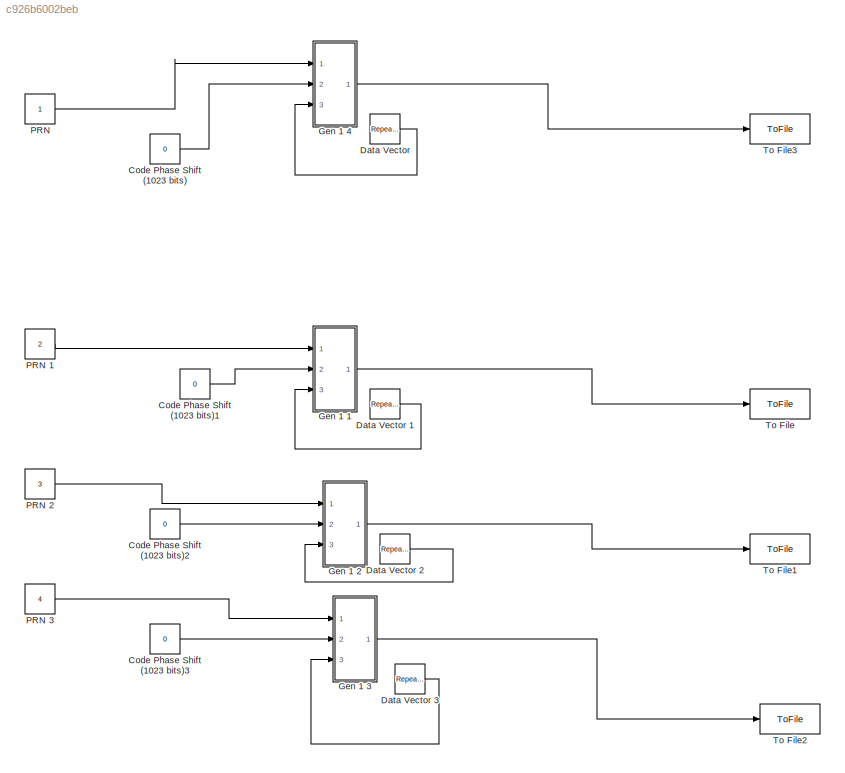
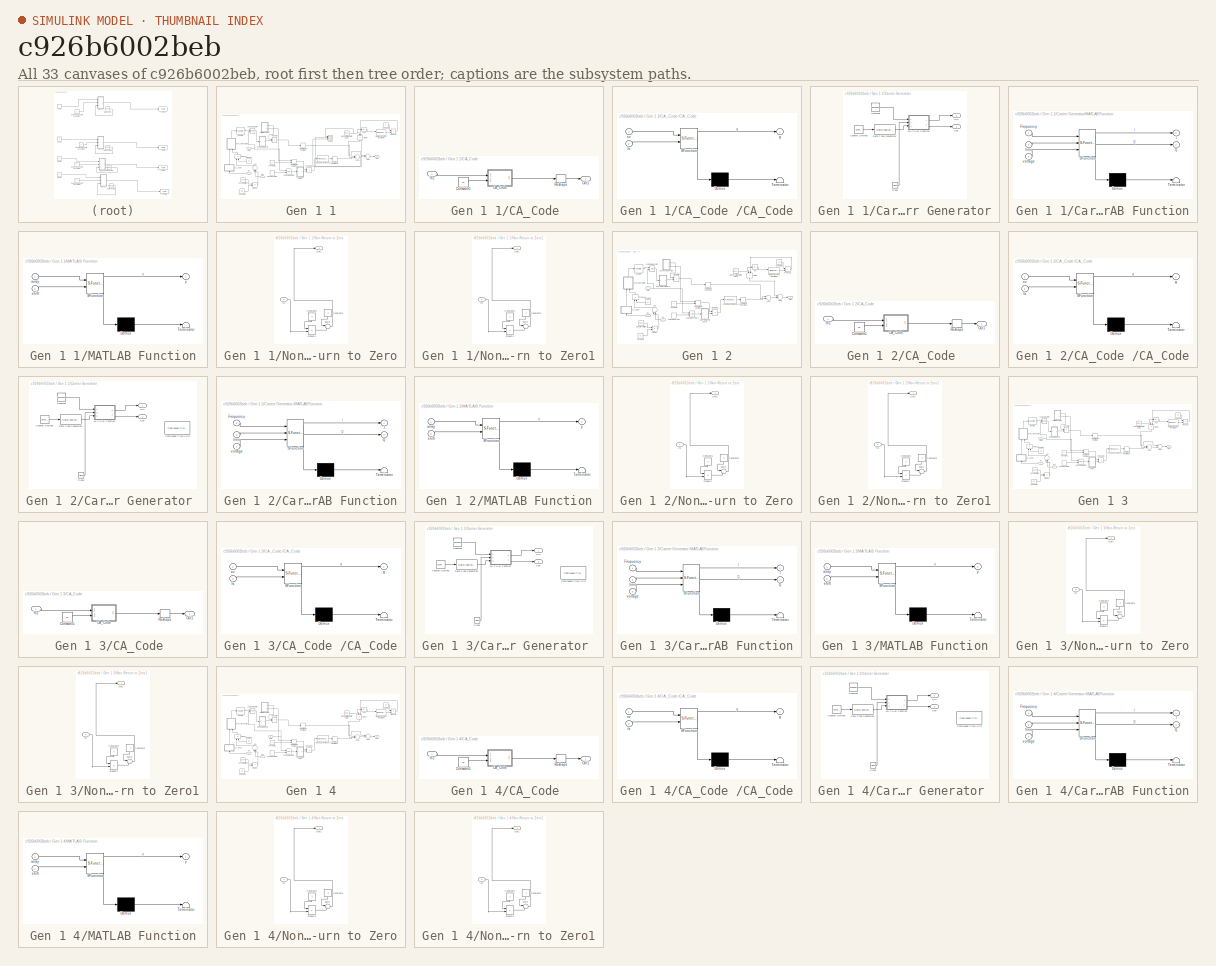
[diagram: thumbnail index - all 33 canvases of the model, root first then tree order]
MODEL slx_c926b6002beb
KIND model
CONFIG AbsTol = auto
CONFIG EnableMultiTasking = off
CONFIG FixedStep = auto
CONFIG MaxStep = auto
CONFIG MinStep = auto
CONFIG RelTol = 1e-3
CONFIG SampleTimeConstraint = Unconstrained
CONFIG Solver = VariableStepAuto
CONFIG SolverName = VariableStepAuto
CONFIG StartTime = 0.0
CONFIG StopTime = 0.5
BLOCK [Constant] Code Phase Shift (1023 bits)
  Value = 0
BLOCK [Constant] Code Phase Shift (1023 bits)1
  Value = 0
BLOCK [Constant] Code Phase Shift (1023 bits)2
  Value = 0
BLOCK [Constant] Code Phase Shift (1023 bits)3
  Value = 0
BLOCK [Reference] Data Vector  REF=simulink/Sources/Repeating
Sequence
Stair
  Ports = [0, 1]
  SourceBlock = simulink/Sources/Repeating\nSequence\nStair
  SourceProductBaseCode = SL
  SourceProductName = Simulink
  SourceType = Repeating Sequence Stair
BLOCK [Reference] Data Vector 1  REF=simulink/Sources/Repeating
Sequence
Stair
  Ports = [0, 1]
  SourceBlock = simulink/Sources/Repeating\nSequence\nStair
  SourceProductBaseCode = SL
  SourceProductName = Simulink
  SourceType = Repeating Sequence Stair
BLOCK [Reference] Data Vector 2  REF=simulink/Sources/Repeating
Sequence
Stair
  Ports = [0, 1]
  SourceBlock = simulink/Sources/Repeating\nSequence\nStair
  SourceProductBaseCode = SL
  SourceProductName = Simulink
  SourceType = Repeating Sequence Stair
BLOCK [Reference] Data Vector 3  REF=simulink/Sources/Repeating
Sequence
Stair
  Ports = [0, 1]
  SourceBlock = simulink/Sources/Repeating\nSequence\nStair
  SourceProductBaseCode = SL
  SourceProductName = Simulink
  SourceType = Repeating Sequence Stair
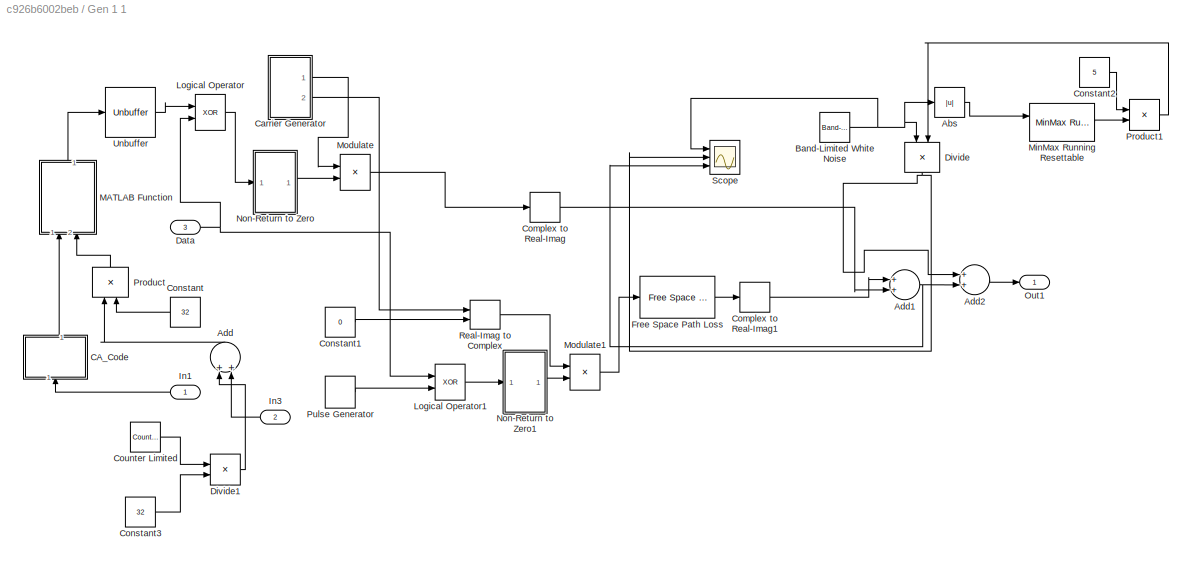
BLOCK [SubSystem] Gen 1 1
  Ports = [3, 1]
  RequestExecContextInheritance = off
BLOCK [Abs] Gen 1 1/Abs
  SaturateOnIntegerOverflow = off
BLOCK [Sum] Gen 1 1/Add
  InputSameDT = off
  OutDataTypeStr = Inherit: Inherit via internal rule
  Ports = [2, 1]
  SaturateOnIntegerOverflow = off
BLOCK [Sum] Gen 1 1/Add1
  InputSameDT = off
  OutDataTypeStr = Inherit: Inherit via internal rule
  Ports = [2, 1]
  SaturateOnIntegerOverflow = off
BLOCK [Sum] Gen 1 1/Add2
  InputSameDT = off
  OutDataTypeStr = Inherit: Inherit via internal rule
  Ports = [2, 1]
  SaturateOnIntegerOverflow = off
BLOCK [Reference] Gen 1 1/Band-Limited White Noise  REF=simulink/Sources/Band-Limited
White Noise
  Ports = [0, 1]
  SourceBlock = simulink/Sources/Band-Limited\nWhite Noise
  SourceProductBaseCode = SL
  SourceProductName = Simulink
  SourceType = Band-Limited White Noise.
BLOCK [SubSystem] Gen 1 1/CA_Code 
  Ports = [1, 1]
  RequestExecContextInheritance = off
BLOCK [SubSystem] Gen 1 1/CA_Code /CA_Code
  ErrorFcn = Stateflow.Translate.translate
  PermitHierarchicalResolution = ExplicitOnly
  Ports = [2, 1]
  RequestExecContextInheritance = off
  SFBlockType = MATLAB Function
  SystemSampleTime = 0.001
  TreatAsAtomicUnit = on
BLOCK [Demux] Gen 1 1/CA_Code /CA_Code/ Demux 
  Outputs = 1
  Ports = [1, 1]
BLOCK [S-Function] Gen 1 1/CA_Code /CA_Code/ SFunction 
  EnableBusSupport = on
  FunctionName = sf_sfun
  PortCounts = [2 2]
  Ports = [2, 2]
  SFcnIsStateOwnerBlock = off
  SFunctionDeploymentMode = off
  Tag = Stateflow S-Function Signal_Generator 3
BLOCK [Terminator] Gen 1 1/CA_Code /CA_Code/ Terminator 
BLOCK [Inport] Gen 1 1/CA_Code /CA_Code/fs
  IconDisplay = Port number
  Port = 2
BLOCK [Outport] Gen 1 1/CA_Code /CA_Code/g
  IconDisplay = Port number
BLOCK [Inport] Gen 1 1/CA_Code /CA_Code/sv
  IconDisplay = Port number
BLOCK [Constant] Gen 1 1/CA_Code /Constant1
  Value = 32
BLOCK [Inport] Gen 1 1/CA_Code /In1
  IconDisplay = Port number
BLOCK [Outport] Gen 1 1/CA_Code /Out1
  IconDisplay = Port number
BLOCK [Reshape] Gen 1 1/CA_Code /Reshape
  OutputDimensionality = Column vector (2-D)
  Ports = [1, 1]
BLOCK [SubSystem] Gen 1 1/Carrier Generator
  Ports = [0, 2]
  RequestExecContextInheritance = off
BLOCK [Clock] Gen 1 1/Carrier Generator/Clock
BLOCK [Constant] Gen 1 1/Carrier Generator/Constant
  Value = 9204000
BLOCK [Outport] Gen 1 1/Carrier Generator/Cos
  IconDisplay = Port number
  Port = 2
BLOCK [Reference] Gen 1 1/Carrier Generator/Counter Limited  REF=simulink/Sources/Counter
Limited
  Ports = [0, 1]
  SourceBlock = simulink/Sources/Counter\nLimited
  SourceProductBaseCode = SL
  SourceProductName = Simulink
  SourceType = Counter Limited
BLOCK [DataTypeConversion] Gen 1 1/Carrier Generator/Data Type Conversion
  RndMeth = Floor
  SaturateOnIntegerOverflow = off
BLOCK [SubSystem] Gen 1 1/Carrier Generator/MATLAB Function
  ErrorFcn = Stateflow.Translate.translate
  PermitHierarchicalResolution = ExplicitOnly
  Ports = [3, 2]
  RequestExecContextInheritance = off
  SFBlockType = MATLAB Function
  TreatAsAtomicUnit = on
BLOCK [Demux] Gen 1 1/Carrier Generator/MATLAB Function/ Demux 
  Outputs = 1
  Ports = [1, 1]
BLOCK [S-Function] Gen 1 1/Carrier Generator/MATLAB Function/ SFunction 
  EnableBusSupport = on
  FunctionName = sf_sfun
  PortCounts = [3 3]
  Ports = [3, 3]
  SFcnIsStateOwnerBlock = off
  SFunctionDeploymentMode = off
  Tag = Stateflow S-Function Signal_Generator 11
BLOCK [Terminator] Gen 1 1/Carrier Generator/MATLAB Function/ Terminator 
BLOCK [Inport] Gen 1 1/Carrier Generator/MATLAB Function/Frequency
  IconDisplay = Port number
BLOCK [Outport] Gen 1 1/Carrier Generator/MATLAB Function/I
  IconDisplay = Port number
BLOCK [Outport] Gen 1 1/Carrier Generator/MATLAB Function/Q
  IconDisplay = Port number
  Port = 2
BLOCK [Inport] Gen 1 1/Carrier Generator/MATLAB Function/time
  IconDisplay = Port number
  Port = 2
BLOCK [Inport] Gen 1 1/Carrier Generator/MATLAB Function/voltage
  IconDisplay = Port number
  Port = 3
BLOCK [Outport] Gen 1 1/Carrier Generator/Sin
  IconDisplay = Port number
BLOCK [ComplexToRealImag] Gen 1 1/Complex to Real-Imag
  Output = Real
  Ports = [1, 1]
BLOCK [ComplexToRealImag] Gen 1 1/Complex to Real-Imag1
  Output = Real
  Ports = [1, 1]
BLOCK [Constant] Gen 1 1/Constant
  Value = 32
BLOCK [Constant] Gen 1 1/Constant1
  Value = 0
BLOCK [Constant] Gen 1 1/Constant2
  Value = 5
BLOCK [Constant] Gen 1 1/Constant3
  Value = 32
BLOCK [Reference] Gen 1 1/Counter Limited  REF=simulink/Sources/Counter
Limited
  Ports = [0, 1]
  SourceBlock = simulink/Sources/Counter\nLimited
  SourceProductBaseCode = SL
  SourceProductName = Simulink
  SourceType = Counter Limited
BLOCK [Inport] Gen 1 1/Data 
  IconDisplay = Port number
  Port = 3
BLOCK [Product] Gen 1 1/Divide
  InputSameDT = off
  Inputs = */
  OutDataTypeStr = Inherit: Inherit via internal rule
  Ports = [2, 1]
  RndMeth = Floor
  SaturateOnIntegerOverflow = off
BLOCK [Product] Gen 1 1/Divide1
  InputSameDT = off
  Inputs = */
  OutDataTypeStr = Inherit: Inherit via internal rule
  Ports = [2, 1]
  RndMeth = Floor
  SaturateOnIntegerOverflow = off
BLOCK [Reference] Gen 1 1/Free Space Path Loss  REF=commrflib2/Free Space
Path Loss
  Ports = [1, 1]
  SourceBlock = commrflib2/Free Space\nPath Loss
  SourceProductBaseCode = CM
  SourceProductName = Communications System Toolbox
  SourceType = Free Space Path Loss
BLOCK [Inport] Gen 1 1/In1
  IconDisplay = Port number
BLOCK [Inport] Gen 1 1/In3
  IconDisplay = Port number
  Port = 2
BLOCK [Logic] Gen 1 1/Logical Operator
  AllPortsSameDT = off
  Operator = XOR
  OutDataTypeStr = boolean
  Ports = [2, 1]
BLOCK [Logic] Gen 1 1/Logical Operator1
  AllPortsSameDT = off
  Operator = XOR
  OutDataTypeStr = boolean
  Ports = [2, 1]
BLOCK [SubSystem] Gen 1 1/MATLAB Function
  ErrorFcn = Stateflow.Translate.translate
  PermitHierarchicalResolution = ExplicitOnly
  Ports = [2, 1]
  RequestExecContextInheritance = off
  SFBlockType = MATLAB Function
  TreatAsAtomicUnit = on
BLOCK [Demux] Gen 1 1/MATLAB Function/ Demux 
  Outputs = 1
  Ports = [1, 1]
BLOCK [S-Function] Gen 1 1/MATLAB Function/ SFunction 
  EnableBusSupport = on
  FunctionName = sf_sfun
  PortCounts = [2 2]
  Ports = [2, 2]
  SFcnIsStateOwnerBlock = off
  SFunctionDeploymentMode = off
  Tag = Stateflow S-Function Signal_Generator 6
BLOCK [Terminator] Gen 1 1/MATLAB Function/ Terminator 
BLOCK [Inport] Gen 1 1/MATLAB Function/array
  IconDisplay = Port number
BLOCK [Inport] Gen 1 1/MATLAB Function/shift
  IconDisplay = Port number
  Port = 2
BLOCK [Outport] Gen 1 1/MATLAB Function/y
  IconDisplay = Port number
BLOCK [Reference] Gen 1 1/MinMax Running Resettable  REF=simulink/Math
Operations/MinMax
Running
Resettable
  Ports = [2, 1]
  SourceBlock = simulink/Math\nOperations/MinMax\nRunning\nResettable
  SourceProductBaseCode = SL
  SourceProductName = Simulink
  SourceType = MinMax Running Resettable
BLOCK [Product] Gen 1 1/Modulate
  InputSameDT = off
  OutDataTypeStr = Inherit: Inherit via internal rule
  Ports = [2, 1]
  RndMeth = Floor
  SaturateOnIntegerOverflow = off
BLOCK [Product] Gen 1 1/Modulate1
  InputSameDT = off
  OutDataTypeStr = Inherit: Inherit via internal rule
  Ports = [2, 1]
  RndMeth = Floor
  SaturateOnIntegerOverflow = off
BLOCK [SubSystem] Gen 1 1/Non-Return to Zero
  Ports = [1, 1]
  RequestExecContextInheritance = off
BLOCK [Constant] Gen 1 1/Non-Return to Zero/Constant5
  SampleTime = 1.52587891e-8
  Value = 2
BLOCK [Constant] Gen 1 1/Non-Return to Zero/Constant6
  Value = -1
BLOCK [Inport] Gen 1 1/Non-Return to Zero/In1
  IconDisplay = Port number
BLOCK [Outport] Gen 1 1/Non-Return to Zero/Out1
  IconDisplay = Port number
BLOCK [Product] Gen 1 1/Non-Return to Zero/Product4
  InputSameDT = off
  OutDataTypeStr = Inherit: Inherit via internal rule
  Ports = [2, 1]
  RndMeth = Floor
  SaturateOnIntegerOverflow = off
BLOCK [Sum] Gen 1 1/Non-Return to Zero/Sum2
  IconShape = round
  InputSameDT = off
  Inputs = |++
  OutDataTypeStr = Inherit: Inherit via internal rule
  Ports = [2, 1]
  SaturateOnIntegerOverflow = off
BLOCK [SubSystem] Gen 1 1/Non-Return to Zero1
  Ports = [1, 1]
  RequestExecContextInheritance = off
BLOCK [Constant] Gen 1 1/Non-Return to Zero1/Constant5
  SampleTime = 1.52587891e-8
  Value = 2
BLOCK [Constant] Gen 1 1/Non-Return to Zero1/Constant6
  Value = -1
BLOCK [Inport] Gen 1 1/Non-Return to Zero1/In1
  IconDisplay = Port number
BLOCK [Outport] Gen 1 1/Non-Return to Zero1/Out1
  IconDisplay = Port number
BLOCK [Product] Gen 1 1/Non-Return to Zero1/Product4
  InputSameDT = off
  OutDataTypeStr = Inherit: Inherit via internal rule
  Ports = [2, 1]
  RndMeth = Floor
  SaturateOnIntegerOverflow = off
BLOCK [Sum] Gen 1 1/Non-Return to Zero1/Sum2
  IconShape = round
  InputSameDT = off
  Inputs = |++
  OutDataTypeStr = Inherit: Inherit via internal rule
  Ports = [2, 1]
  SaturateOnIntegerOverflow = off
BLOCK [Outport] Gen 1 1/Out1
  IconDisplay = Port number
BLOCK [Product] Gen 1 1/Product
  InputSameDT = off
  OutDataTypeStr = Inherit: Inherit via internal rule
  Ports = [2, 1]
  RndMeth = Floor
  SaturateOnIntegerOverflow = off
BLOCK [Product] Gen 1 1/Product1
  InputSameDT = off
  OutDataTypeStr = Inherit: Inherit via internal rule
  Ports = [2, 1]
  RndMeth = Floor
  SaturateOnIntegerOverflow = off
BLOCK [DiscretePulseGenerator] Gen 1 1/Pulse Generator
  Period = 2/10230000
  Ports = [0, 1]
  PulseType = Time based
  PulseWidth = 50
BLOCK [RealImagToComplex] Gen 1 1/Real-Imag to Complex
  Ports = [2, 1]
BLOCK [Scope] Gen 1 1/Scope
  Floating = off
  NumInputPorts = 3
  Ports = [3]
  ScopeSpecificationString = Simulink.scopes.TimeScopeBlockCfg('CurrentConfiguration', extmgr.ConfigurationSet(extmgr.Configuration('Core','General UI',true),extmgr.Configuration('Core','Source UI',true),extmgr.Configuration('Sources','WiredSimulink',true,'DataLoggingVariableName','ScopeData1'),extmgr.Configuration('Visuals','Time Domain',true,'SerializedDisplays',{struct('MinYLimReal','-2.16536','MaxYLimReal','2.53332','YLab...<+1443ch>
BLOCK [Unbuffer] Gen 1 1/Unbuffer
  Ports = [1, 1]
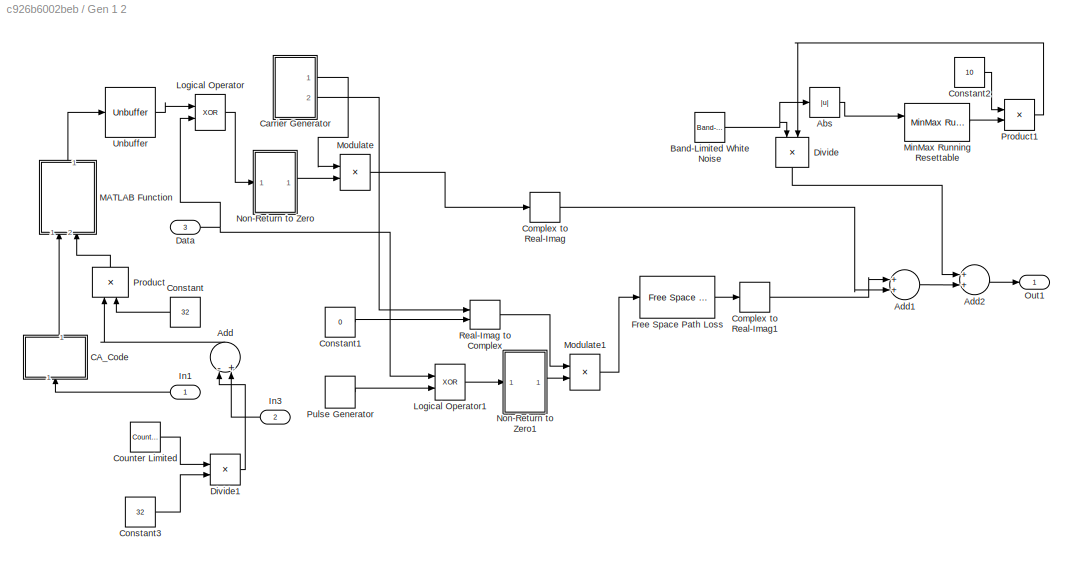
BLOCK [SubSystem] Gen 1 2
  Ports = [3, 1]
  RequestExecContextInheritance = off
BLOCK [Abs] Gen 1 2/Abs
  SaturateOnIntegerOverflow = off
BLOCK [Sum] Gen 1 2/Add
  InputSameDT = off
  Inputs = -+
  OutDataTypeStr = Inherit: Inherit via internal rule
  Ports = [2, 1]
  SaturateOnIntegerOverflow = off
BLOCK [Sum] Gen 1 2/Add1
  InputSameDT = off
  OutDataTypeStr = Inherit: Inherit via internal rule
  Ports = [2, 1]
  SaturateOnIntegerOverflow = off
BLOCK [Sum] Gen 1 2/Add2
  InputSameDT = off
  OutDataTypeStr = Inherit: Inherit via internal rule
  Ports = [2, 1]
  SaturateOnIntegerOverflow = off
BLOCK [Reference] Gen 1 2/Band-Limited White Noise  REF=simulink/Sources/Band-Limited
White Noise
  Ports = [0, 1]
  SourceBlock = simulink/Sources/Band-Limited\nWhite Noise
  SourceProductBaseCode = SL
  SourceProductName = Simulink
  SourceType = Band-Limited White Noise.
BLOCK [SubSystem] Gen 1 2/CA_Code 
  Ports = [1, 1]
  RequestExecContextInheritance = off
BLOCK [SubSystem] Gen 1 2/CA_Code /CA_Code
  ErrorFcn = Stateflow.Translate.translate
  PermitHierarchicalResolution = ExplicitOnly
  Ports = [2, 1]
  RequestExecContextInheritance = off
  SFBlockType = MATLAB Function
  SystemSampleTime = 0.001
  TreatAsAtomicUnit = on
BLOCK [Demux] Gen 1 2/CA_Code /CA_Code/ Demux 
  Outputs = 1
  Ports = [1, 1]
BLOCK [S-Function] Gen 1 2/CA_Code /CA_Code/ SFunction 
  EnableBusSupport = on
  FunctionName = sf_sfun
  PortCounts = [2 2]
  Ports = [2, 2]
  SFcnIsStateOwnerBlock = off
  SFunctionDeploymentMode = off
  Tag = Stateflow S-Function Signal_Generator 1
BLOCK [Terminator] Gen 1 2/CA_Code /CA_Code/ Terminator 
BLOCK [Inport] Gen 1 2/CA_Code /CA_Code/fs
  IconDisplay = Port number
  Port = 2
BLOCK [Outport] Gen 1 2/CA_Code /CA_Code/g
  IconDisplay = Port number
BLOCK [Inport] Gen 1 2/CA_Code /CA_Code/sv
  IconDisplay = Port number
BLOCK [Constant] Gen 1 2/CA_Code /Constant1
  Value = 32
BLOCK [Inport] Gen 1 2/CA_Code /In1
  IconDisplay = Port number
BLOCK [Outport] Gen 1 2/CA_Code /Out1
  IconDisplay = Port number
BLOCK [Reshape] Gen 1 2/CA_Code /Reshape
  OutputDimensionality = Column vector (2-D)
  Ports = [1, 1]
BLOCK [SubSystem] Gen 1 2/Carrier Generator 
  Ports = [0, 2]
  RequestExecContextInheritance = off
BLOCK [Clock] Gen 1 2/Carrier Generator /Clock
BLOCK [Constant] Gen 1 2/Carrier Generator /Constant
  Value = 9207000
BLOCK [Reference] Gen 1 2/Carrier Generator /Continuous-Time VCO  REF=commsynccomp2/Continuous-Time
VCO
  Ports = [1, 1]
  SourceBlock = commsynccomp2/Continuous-Time\nVCO
  SourceProductBaseCode = CM
  SourceProductName = Communications System Toolbox
  SourceType = Continuous-Time VCO
BLOCK [Outport] Gen 1 2/Carrier Generator /Cos
  IconDisplay = Port number
  Port = 2
BLOCK [Reference] Gen 1 2/Carrier Generator /Counter Limited  REF=simulink/Sources/Counter
Limited
  Ports = [0, 1]
  SourceBlock = simulink/Sources/Counter\nLimited
  SourceProductBaseCode = SL
  SourceProductName = Simulink
  SourceType = Counter Limited
BLOCK [DataTypeConversion] Gen 1 2/Carrier Generator /Data Type Conversion
  RndMeth = Floor
  SaturateOnIntegerOverflow = off
BLOCK [SubSystem] Gen 1 2/Carrier Generator /MATLAB Function
  ErrorFcn = Stateflow.Translate.translate
  PermitHierarchicalResolution = ExplicitOnly
  Ports = [3, 2]
  RequestExecContextInheritance = off
  SFBlockType = MATLAB Function
  TreatAsAtomicUnit = on
BLOCK [Demux] Gen 1 2/Carrier Generator /MATLAB Function/ Demux 
  Outputs = 1
  Ports = [1, 1]
BLOCK [S-Function] Gen 1 2/Carrier Generator /MATLAB Function/ SFunction 
  EnableBusSupport = on
  FunctionName = sf_sfun
  PortCounts = [3 3]
  Ports = [3, 3]
  SFcnIsStateOwnerBlock = off
  SFunctionDeploymentMode = off
  Tag = Stateflow S-Function Signal_Generator 10
BLOCK [Terminator] Gen 1 2/Carrier Generator /MATLAB Function/ Terminator 
BLOCK [Inport] Gen 1 2/Carrier Generator /MATLAB Function/Frequency
  IconDisplay = Port number
BLOCK [Outport] Gen 1 2/Carrier Generator /MATLAB Function/I
  IconDisplay = Port number
BLOCK [Outport] Gen 1 2/Carrier Generator /MATLAB Function/Q
  IconDisplay = Port number
  Port = 2
BLOCK [Inport] Gen 1 2/Carrier Generator /MATLAB Function/time
  IconDisplay = Port number
  Port = 2
BLOCK [Inport] Gen 1 2/Carrier Generator /MATLAB Function/voltage
  IconDisplay = Port number
  Port = 3
BLOCK [Outport] Gen 1 2/Carrier Generator /Sin
  IconDisplay = Port number
BLOCK [ComplexToRealImag] Gen 1 2/Complex to Real-Imag
  Output = Real
  Ports = [1, 1]
BLOCK [ComplexToRealImag] Gen 1 2/Complex to Real-Imag1
  Output = Real
  Ports = [1, 1]
BLOCK [Constant] Gen 1 2/Constant
  Value = 32
BLOCK [Constant] Gen 1 2/Constant1
  Value = 0
BLOCK [Constant] Gen 1 2/Constant2
  Value = 10
BLOCK [Constant] Gen 1 2/Constant3
  Value = 32
BLOCK [Reference] Gen 1 2/Counter Limited  REF=simulink/Sources/Counter
Limited
  Ports = [0, 1]
  SourceBlock = simulink/Sources/Counter\nLimited
  SourceProductBaseCode = SL
  SourceProductName = Simulink
  SourceType = Counter Limited
BLOCK [Inport] Gen 1 2/Data 
  IconDisplay = Port number
  Port = 3
BLOCK [Product] Gen 1 2/Divide
  InputSameDT = off
  Inputs = */
  OutDataTypeStr = Inherit: Inherit via internal rule
  Ports = [2, 1]
  RndMeth = Floor
  SaturateOnIntegerOverflow = off
BLOCK [Product] Gen 1 2/Divide1
  InputSameDT = off
  Inputs = */
  OutDataTypeStr = Inherit: Inherit via internal rule
  Ports = [2, 1]
  RndMeth = Floor
  SaturateOnIntegerOverflow = off
BLOCK [Reference] Gen 1 2/Free Space Path Loss  REF=commrflib2/Free Space
Path Loss
  Ports = [1, 1]
  SourceBlock = commrflib2/Free Space\nPath Loss
  SourceProductBaseCode = CM
  SourceProductName = Communications System Toolbox
  SourceType = Free Space Path Loss
BLOCK [Inport] Gen 1 2/In1
  IconDisplay = Port number
BLOCK [Inport] Gen 1 2/In3
  IconDisplay = Port number
  Port = 2
BLOCK [Logic] Gen 1 2/Logical Operator
  AllPortsSameDT = off
  Operator = XOR
  OutDataTypeStr = boolean
  Ports = [2, 1]
BLOCK [Logic] Gen 1 2/Logical Operator1
  AllPortsSameDT = off
  Operator = XOR
  OutDataTypeStr = boolean
  Ports = [2, 1]
BLOCK [SubSystem] Gen 1 2/MATLAB Function
  ErrorFcn = Stateflow.Translate.translate
  PermitHierarchicalResolution = ExplicitOnly
  Ports = [2, 1]
  RequestExecContextInheritance = off
  SFBlockType = MATLAB Function
  TreatAsAtomicUnit = on
BLOCK [Demux] Gen 1 2/MATLAB Function/ Demux 
  Outputs = 1
  Ports = [1, 1]
BLOCK [S-Function] Gen 1 2/MATLAB Function/ SFunction 
  EnableBusSupport = on
  FunctionName = sf_sfun
  PortCounts = [2 2]
  Ports = [2, 2]
  SFcnIsStateOwnerBlock = off
  SFunctionDeploymentMode = off
  Tag = Stateflow S-Function Signal_Generator 4
BLOCK [Terminator] Gen 1 2/MATLAB Function/ Terminator 
BLOCK [Inport] Gen 1 2/MATLAB Function/array
  IconDisplay = Port number
BLOCK [Inport] Gen 1 2/MATLAB Function/shift
  IconDisplay = Port number
  Port = 2
BLOCK [Outport] Gen 1 2/MATLAB Function/y
  IconDisplay = Port number
BLOCK [Reference] Gen 1 2/MinMax Running Resettable  REF=simulink/Math
Operations/MinMax
Running
Resettable
  Ports = [2, 1]
  SourceBlock = simulink/Math\nOperations/MinMax\nRunning\nResettable
  SourceProductBaseCode = SL
  SourceProductName = Simulink
  SourceType = MinMax Running Resettable
BLOCK [Product] Gen 1 2/Modulate
  InputSameDT = off
  OutDataTypeStr = Inherit: Inherit via internal rule
  Ports = [2, 1]
  RndMeth = Floor
  SaturateOnIntegerOverflow = off
BLOCK [Product] Gen 1 2/Modulate1
  InputSameDT = off
  OutDataTypeStr = Inherit: Inherit via internal rule
  Ports = [2, 1]
  RndMeth = Floor
  SaturateOnIntegerOverflow = off
BLOCK [SubSystem] Gen 1 2/Non-Return to Zero
  Ports = [1, 1]
  RequestExecContextInheritance = off
BLOCK [Constant] Gen 1 2/Non-Return to Zero/Constant5
  SampleTime = 1.52587891e-8
  Value = 2
BLOCK [Constant] Gen 1 2/Non-Return to Zero/Constant6
  Value = -1
BLOCK [Inport] Gen 1 2/Non-Return to Zero/In1
  IconDisplay = Port number
BLOCK [Outport] Gen 1 2/Non-Return to Zero/Out1
  IconDisplay = Port number
BLOCK [Product] Gen 1 2/Non-Return to Zero/Product4
  InputSameDT = off
  OutDataTypeStr = Inherit: Inherit via internal rule
  Ports = [2, 1]
  RndMeth = Floor
  SaturateOnIntegerOverflow = off
BLOCK [Sum] Gen 1 2/Non-Return to Zero/Sum2
  IconShape = round
  InputSameDT = off
  Inputs = |++
  OutDataTypeStr = Inherit: Inherit via internal rule
  Ports = [2, 1]
  SaturateOnIntegerOverflow = off
BLOCK [SubSystem] Gen 1 2/Non-Return to Zero1
  Ports = [1, 1]
  RequestExecContextInheritance = off
BLOCK [Constant] Gen 1 2/Non-Return to Zero1/Constant5
  SampleTime = 1.52587891e-8
  Value = 2
BLOCK [Constant] Gen 1 2/Non-Return to Zero1/Constant6
  Value = -1
BLOCK [Inport] Gen 1 2/Non-Return to Zero1/In1
  IconDisplay = Port number
BLOCK [Outport] Gen 1 2/Non-Return to Zero1/Out1
  IconDisplay = Port number
BLOCK [Product] Gen 1 2/Non-Return to Zero1/Product4
  InputSameDT = off
  OutDataTypeStr = Inherit: Inherit via internal rule
  Ports = [2, 1]
  RndMeth = Floor
  SaturateOnIntegerOverflow = off
BLOCK [Sum] Gen 1 2/Non-Return to Zero1/Sum2
  IconShape = round
  InputSameDT = off
  Inputs = |++
  OutDataTypeStr = Inherit: Inherit via internal rule
  Ports = [2, 1]
  SaturateOnIntegerOverflow = off
BLOCK [Outport] Gen 1 2/Out1
  IconDisplay = Port number
BLOCK [Product] Gen 1 2/Product
  InputSameDT = off
  OutDataTypeStr = Inherit: Inherit via internal rule
  Ports = [2, 1]
  RndMeth = Floor
  SaturateOnIntegerOverflow = off
BLOCK [Product] Gen 1 2/Product1
  InputSameDT = off
  OutDataTypeStr = Inherit: Inherit via internal rule
  Ports = [2, 1]
  RndMeth = Floor
  SaturateOnIntegerOverflow = off
BLOCK [DiscretePulseGenerator] Gen 1 2/Pulse Generator
  Period = 2/10230000
  Ports = [0, 1]
  PulseType = Time based
  PulseWidth = 50
BLOCK [RealImagToComplex] Gen 1 2/Real-Imag to Complex
  Ports = [2, 1]
BLOCK [Unbuffer] Gen 1 2/Unbuffer
  Ports = [1, 1]
BLOCK [SubSystem] Gen 1 3
  Ports = [3, 1]
  RequestExecContextInheritance = off
BLOCK [Abs] Gen 1 3/Abs
  SaturateOnIntegerOverflow = off
BLOCK [Sum] Gen 1 3/Add
  InputSameDT = off
  OutDataTypeStr = Inherit: Inherit via internal rule
  Ports = [2, 1]
  SaturateOnIntegerOverflow = off
BLOCK [Sum] Gen 1 3/Add1
  InputSameDT = off
  OutDataTypeStr = Inherit: Inherit via internal rule
  Ports = [2, 1]
  SaturateOnIntegerOverflow = off
BLOCK [Sum] Gen 1 3/Add2
  InputSameDT = off
  OutDataTypeStr = Inherit: Inherit via internal rule
  Ports = [2, 1]
  SaturateOnIntegerOverflow = off
BLOCK [Reference] Gen 1 3/Band-Limited White Noise  REF=simulink/Sources/Band-Limited
White Noise
  Ports = [0, 1]
  SourceBlock = simulink/Sources/Band-Limited\nWhite Noise
  SourceProductBaseCode = SL
  SourceProductName = Simulink
  SourceType = Band-Limited White Noise.
BLOCK [SubSystem] Gen 1 3/CA_Code 
  Ports = [1, 1]
  RequestExecContextInheritance = off
BLOCK [SubSystem] Gen 1 3/CA_Code /CA_Code
  ErrorFcn = Stateflow.Translate.translate
  PermitHierarchicalResolution = ExplicitOnly
  Ports = [2, 1]
  RequestExecContextInheritance = off
  SFBlockType = MATLAB Function
  SystemSampleTime = 0.001
  TreatAsAtomicUnit = on
BLOCK [Demux] Gen 1 3/CA_Code /CA_Code/ Demux 
  Outputs = 1
  Ports = [1, 1]
BLOCK [S-Function] Gen 1 3/CA_Code /CA_Code/ SFunction 
  EnableBusSupport = on
  FunctionName = sf_sfun
  PortCounts = [2 2]
  Ports = [2, 2]
  SFcnIsStateOwnerBlock = off
  SFunctionDeploymentMode = off
  Tag = Stateflow S-Function Signal_Generator 8
BLOCK [Terminator] Gen 1 3/CA_Code /CA_Code/ Terminator 
BLOCK [Inport] Gen 1 3/CA_Code /CA_Code/fs
  IconDisplay = Port number
  Port = 2
BLOCK [Outport] Gen 1 3/CA_Code /CA_Code/g
  IconDisplay = Port number
BLOCK [Inport] Gen 1 3/CA_Code /CA_Code/sv
  IconDisplay = Port number
BLOCK [Constant] Gen 1 3/CA_Code /Constant1
  Value = 32
BLOCK [Inport] Gen 1 3/CA_Code /In1
  IconDisplay = Port number
BLOCK [Outport] Gen 1 3/CA_Code /Out1
  IconDisplay = Port number
BLOCK [Reshape] Gen 1 3/CA_Code /Reshape
  OutputDimensionality = Column vector (2-D)
  Ports = [1, 1]
BLOCK [SubSystem] Gen 1 3/Carrier Generator 
  Ports = [0, 2]
  RequestExecContextInheritance = off
BLOCK [Clock] Gen 1 3/Carrier Generator /Clock
BLOCK [Constant] Gen 1 3/Carrier Generator /Constant
  Value = 9207000
BLOCK [Reference] Gen 1 3/Carrier Generator /Continuous-Time VCO  REF=commsynccomp2/Continuous-Time
VCO
  Ports = [1, 1]
  SourceBlock = commsynccomp2/Continuous-Time\nVCO
  SourceProductBaseCode = CM
  SourceProductName = Communications System Toolbox
  SourceType = Continuous-Time VCO
BLOCK [Outport] Gen 1 3/Carrier Generator /Cos
  IconDisplay = Port number
  Port = 2
BLOCK [Reference] Gen 1 3/Carrier Generator /Counter Limited  REF=simulink/Sources/Counter
Limited
  Ports = [0, 1]
  SourceBlock = simulink/Sources/Counter\nLimited
  SourceProductBaseCode = SL
  SourceProductName = Simulink
  SourceType = Counter Limited
BLOCK [DataTypeConversion] Gen 1 3/Carrier Generator /Data Type Conversion
  RndMeth = Floor
  SaturateOnIntegerOverflow = off
BLOCK [SubSystem] Gen 1 3/Carrier Generator /MATLAB Function
  ErrorFcn = Stateflow.Translate.translate
  PermitHierarchicalResolution = ExplicitOnly
  Ports = [3, 2]
  RequestExecContextInheritance = off
  SFBlockType = MATLAB Function
  TreatAsAtomicUnit = on
BLOCK [Demux] Gen 1 3/Carrier Generator /MATLAB Function/ Demux 
  Outputs = 1
  Ports = [1, 1]
BLOCK [S-Function] Gen 1 3/Carrier Generator /MATLAB Function/ SFunction 
  EnableBusSupport = on
  FunctionName = sf_sfun
  PortCounts = [3 3]
  Ports = [3, 3]
  SFcnIsStateOwnerBlock = off
  SFunctionDeploymentMode = off
  Tag = Stateflow S-Function Signal_Generator 7
BLOCK [Terminator] Gen 1 3/Carrier Generator /MATLAB Function/ Terminator 
BLOCK [Inport] Gen 1 3/Carrier Generator /MATLAB Function/Frequency
  IconDisplay = Port number
BLOCK [Outport] Gen 1 3/Carrier Generator /MATLAB Function/I
  IconDisplay = Port number
BLOCK [Outport] Gen 1 3/Carrier Generator /MATLAB Function/Q
  IconDisplay = Port number
  Port = 2
BLOCK [Inport] Gen 1 3/Carrier Generator /MATLAB Function/time
  IconDisplay = Port number
  Port = 2
BLOCK [Inport] Gen 1 3/Carrier Generator /MATLAB Function/voltage
  IconDisplay = Port number
  Port = 3
BLOCK [Outport] Gen 1 3/Carrier Generator /Sin
  IconDisplay = Port number
BLOCK [ComplexToRealImag] Gen 1 3/Complex to Real-Imag
  Output = Real
  Ports = [1, 1]
BLOCK [ComplexToRealImag] Gen 1 3/Complex to Real-Imag1
  Output = Real
  Ports = [1, 1]
BLOCK [Constant] Gen 1 3/Constant
  Value = 32
BLOCK [Constant] Gen 1 3/Constant1
  Value = 0
BLOCK [Constant] Gen 1 3/Constant2
  Value = 10
BLOCK [Constant] Gen 1 3/Constant3
  Value = 32
BLOCK [Reference] Gen 1 3/Counter Limited  REF=simulink/Sources/Counter
Limited
  Ports = [0, 1]
  SourceBlock = simulink/Sources/Counter\nLimited
  SourceProductBaseCode = SL
  SourceProductName = Simulink
  SourceType = Counter Limited
BLOCK [Inport] Gen 1 3/Data 
  IconDisplay = Port number
  Port = 3
BLOCK [Product] Gen 1 3/Divide
  InputSameDT = off
  Inputs = */
  OutDataTypeStr = Inherit: Inherit via internal rule
  Ports = [2, 1]
  RndMeth = Floor
  SaturateOnIntegerOverflow = off
BLOCK [Product] Gen 1 3/Divide1
  InputSameDT = off
  Inputs = */
  OutDataTypeStr = Inherit: Inherit via internal rule
  Ports = [2, 1]
  RndMeth = Floor
  SaturateOnIntegerOverflow = off
BLOCK [Reference] Gen 1 3/Free Space Path Loss  REF=commrflib2/Free Space
Path Loss
  Ports = [1, 1]
  SourceBlock = commrflib2/Free Space\nPath Loss
  SourceProductBaseCode = CM
  SourceProductName = Communications System Toolbox
  SourceType = Free Space Path Loss
BLOCK [Inport] Gen 1 3/In1
  IconDisplay = Port number
BLOCK [Inport] Gen 1 3/In3
  IconDisplay = Port number
  Port = 2
BLOCK [Logic] Gen 1 3/Logical Operator
  AllPortsSameDT = off
  Operator = XOR
  OutDataTypeStr = boolean
  Ports = [2, 1]
BLOCK [Logic] Gen 1 3/Logical Operator1
  AllPortsSameDT = off
  Operator = XOR
  OutDataTypeStr = boolean
  Ports = [2, 1]
BLOCK [SubSystem] Gen 1 3/MATLAB Function
  ErrorFcn = Stateflow.Translate.translate
  PermitHierarchicalResolution = ExplicitOnly
  Ports = [2, 1]
  RequestExecContextInheritance = off
  SFBlockType = MATLAB Function
  TreatAsAtomicUnit = on
BLOCK [Demux] Gen 1 3/MATLAB Function/ Demux 
  Outputs = 1
  Ports = [1, 1]
BLOCK [S-Function] Gen 1 3/MATLAB Function/ SFunction 
  EnableBusSupport = on
  FunctionName = sf_sfun
  PortCounts = [2 2]
  Ports = [2, 2]
  SFcnIsStateOwnerBlock = off
  SFunctionDeploymentMode = off
  Tag = Stateflow S-Function Signal_Generator 9
BLOCK [Terminator] Gen 1 3/MATLAB Function/ Terminator 
BLOCK [Inport] Gen 1 3/MATLAB Function/array
  IconDisplay = Port number
BLOCK [Inport] Gen 1 3/MATLAB Function/shift
  IconDisplay = Port number
  Port = 2
BLOCK [Outport] Gen 1 3/MATLAB Function/y
  IconDisplay = Port number
BLOCK [Reference] Gen 1 3/MinMax Running Resettable  REF=simulink/Math
Operations/MinMax
Running
Resettable
  Ports = [2, 1]
  SourceBlock = simulink/Math\nOperations/MinMax\nRunning\nResettable
  SourceProductBaseCode = SL
  SourceProductName = Simulink
  SourceType = MinMax Running Resettable
BLOCK [Product] Gen 1 3/Modulate
  InputSameDT = off
  OutDataTypeStr = Inherit: Inherit via internal rule
  Ports = [2, 1]
  RndMeth = Floor
  SaturateOnIntegerOverflow = off
BLOCK [Product] Gen 1 3/Modulate1
  InputSameDT = off
  OutDataTypeStr = Inherit: Inherit via internal rule
  Ports = [2, 1]
  RndMeth = Floor
  SaturateOnIntegerOverflow = off
BLOCK [SubSystem] Gen 1 3/Non-Return to Zero
  Ports = [1, 1]
  RequestExecContextInheritance = off
BLOCK [Constant] Gen 1 3/Non-Return to Zero/Constant5
  SampleTime = 1.52587891e-8
  Value = 2
BLOCK [Constant] Gen 1 3/Non-Return to Zero/Constant6
  Value = -1
BLOCK [Inport] Gen 1 3/Non-Return to Zero/In1
  IconDisplay = Port number
BLOCK [Outport] Gen 1 3/Non-Return to Zero/Out1
  IconDisplay = Port number
BLOCK [Product] Gen 1 3/Non-Return to Zero/Product4
  InputSameDT = off
  OutDataTypeStr = Inherit: Inherit via internal rule
  Ports = [2, 1]
  RndMeth = Floor
  SaturateOnIntegerOverflow = off
BLOCK [Sum] Gen 1 3/Non-Return to Zero/Sum2
  IconShape = round
  InputSameDT = off
  Inputs = |++
  OutDataTypeStr = Inherit: Inherit via internal rule
  Ports = [2, 1]
  SaturateOnIntegerOverflow = off
BLOCK [SubSystem] Gen 1 3/Non-Return to Zero1
  Ports = [1, 1]
  RequestExecContextInheritance = off
BLOCK [Constant] Gen 1 3/Non-Return to Zero1/Constant5
  SampleTime = 1.52587891e-8
  Value = 2
BLOCK [Constant] Gen 1 3/Non-Return to Zero1/Constant6
  Value = -1
BLOCK [Inport] Gen 1 3/Non-Return to Zero1/In1
  IconDisplay = Port number
BLOCK [Outport] Gen 1 3/Non-Return to Zero1/Out1
  IconDisplay = Port number
BLOCK [Product] Gen 1 3/Non-Return to Zero1/Product4
  InputSameDT = off
  OutDataTypeStr = Inherit: Inherit via internal rule
  Ports = [2, 1]
  RndMeth = Floor
  SaturateOnIntegerOverflow = off
BLOCK [Sum] Gen 1 3/Non-Return to Zero1/Sum2
  IconShape = round
  InputSameDT = off
  Inputs = |++
  OutDataTypeStr = Inherit: Inherit via internal rule
  Ports = [2, 1]
  SaturateOnIntegerOverflow = off
BLOCK [Outport] Gen 1 3/Out1
  IconDisplay = Port number
BLOCK [Product] Gen 1 3/Product
  InputSameDT = off
  OutDataTypeStr = Inherit: Inherit via internal rule
  Ports = [2, 1]
  RndMeth = Floor
  SaturateOnIntegerOverflow = off
BLOCK [Product] Gen 1 3/Product1
  InputSameDT = off
  OutDataTypeStr = Inherit: Inherit via internal rule
  Ports = [2, 1]
  RndMeth = Floor
  SaturateOnIntegerOverflow = off
BLOCK [DiscretePulseGenerator] Gen 1 3/Pulse Generator
  Period = 2/10230000
  Ports = [0, 1]
  PulseType = Time based
  PulseWidth = 50
BLOCK [RealImagToComplex] Gen 1 3/Real-Imag to Complex
  Ports = [2, 1]
BLOCK [Unbuffer] Gen 1 3/Unbuffer
  Ports = [1, 1]
BLOCK [SubSystem] Gen 1 4
  Ports = [3, 1]
  RequestExecContextInheritance = off
BLOCK [Abs] Gen 1 4/Abs
  SaturateOnIntegerOverflow = off
BLOCK [Sum] Gen 1 4/Add
  InputSameDT = off
  OutDataTypeStr = Inherit: Inherit via internal rule
  Ports = [2, 1]
  SaturateOnIntegerOverflow = off
BLOCK [Sum] Gen 1 4/Add1
  InputSameDT = off
  OutDataTypeStr = Inherit: Inherit via internal rule
  Ports = [2, 1]
  SaturateOnIntegerOverflow = off
BLOCK [Sum] Gen 1 4/Add2
  InputSameDT = off
  OutDataTypeStr = Inherit: Inherit via internal rule
  Ports = [2, 1]
  SaturateOnIntegerOverflow = off
BLOCK [Reference] Gen 1 4/Band-Limited White Noise  REF=simulink/Sources/Band-Limited
White Noise
  Ports = [0, 1]
  SourceBlock = simulink/Sources/Band-Limited\nWhite Noise
  SourceProductBaseCode = SL
  SourceProductName = Simulink
  SourceType = Band-Limited White Noise.
BLOCK [SubSystem] Gen 1 4/CA_Code 
  Ports = [1, 1]
  RequestExecContextInheritance = off
BLOCK [SubSystem] Gen 1 4/CA_Code /CA_Code
  ErrorFcn = Stateflow.Translate.translate
  PermitHierarchicalResolution = ExplicitOnly
  Ports = [2, 1]
  RequestExecContextInheritance = off
  SFBlockType = MATLAB Function
  SystemSampleTime = 0.001
  TreatAsAtomicUnit = on
BLOCK [Demux] Gen 1 4/CA_Code /CA_Code/ Demux 
  Outputs = 1
  Ports = [1, 1]
BLOCK [S-Function] Gen 1 4/CA_Code /CA_Code/ SFunction 
  EnableBusSupport = on
  FunctionName = sf_sfun
  PortCounts = [2 2]
  Ports = [2, 2]
  SFcnIsStateOwnerBlock = off
  SFunctionDeploymentMode = off
  Tag = Stateflow S-Function Signal_Generator 2
BLOCK [Terminator] Gen 1 4/CA_Code /CA_Code/ Terminator 
BLOCK [Inport] Gen 1 4/CA_Code /CA_Code/fs
  IconDisplay = Port number
  Port = 2
BLOCK [Outport] Gen 1 4/CA_Code /CA_Code/g
  IconDisplay = Port number
BLOCK [Inport] Gen 1 4/CA_Code /CA_Code/sv
  IconDisplay = Port number
BLOCK [Constant] Gen 1 4/CA_Code /Constant1
  Value = 32
BLOCK [Inport] Gen 1 4/CA_Code /In1
  IconDisplay = Port number
BLOCK [Outport] Gen 1 4/CA_Code /Out1
  IconDisplay = Port number
BLOCK [Reshape] Gen 1 4/CA_Code /Reshape
  OutputDimensionality = Column vector (2-D)
  Ports = [1, 1]
BLOCK [SubSystem] Gen 1 4/Carrier Generator 
  Ports = [0, 2]
  RequestExecContextInheritance = off
BLOCK [Clock] Gen 1 4/Carrier Generator /Clock
BLOCK [Constant] Gen 1 4/Carrier Generator /Constant
  Value = 9209000
BLOCK [Reference] Gen 1 4/Carrier Generator /Continuous-Time VCO  REF=commsynccomp2/Continuous-Time
VCO
  Ports = [1, 1]
  SourceBlock = commsynccomp2/Continuous-Time\nVCO
  SourceProductBaseCode = CM
  SourceProductName = Communications System Toolbox
  SourceType = Continuous-Time VCO
BLOCK [Outport] Gen 1 4/Carrier Generator /Cos
  IconDisplay = Port number
  Port = 2
BLOCK [Reference] Gen 1 4/Carrier Generator /Counter Limited  REF=simulink/Sources/Counter
Limited
  Ports = [0, 1]
  SourceBlock = simulink/Sources/Counter\nLimited
  SourceProductBaseCode = SL
  SourceProductName = Simulink
  SourceType = Counter Limited
BLOCK [DataTypeConversion] Gen 1 4/Carrier Generator /Data Type Conversion
  RndMeth = Floor
  SaturateOnIntegerOverflow = off
BLOCK [SubSystem] Gen 1 4/Carrier Generator /MATLAB Function
  ErrorFcn = Stateflow.Translate.translate
  PermitHierarchicalResolution = ExplicitOnly
  Ports = [3, 2]
  RequestExecContextInheritance = off
  SFBlockType = MATLAB Function
  TreatAsAtomicUnit = on
BLOCK [Demux] Gen 1 4/Carrier Generator /MATLAB Function/ Demux 
  Outputs = 1
  Ports = [1, 1]
BLOCK [S-Function] Gen 1 4/Carrier Generator /MATLAB Function/ SFunction 
  EnableBusSupport = on
  FunctionName = sf_sfun
  PortCounts = [3 3]
  Ports = [3, 3]
  SFcnIsStateOwnerBlock = off
  SFunctionDeploymentMode = off
  Tag = Stateflow S-Function Signal_Generator 12
BLOCK [Terminator] Gen 1 4/Carrier Generator /MATLAB Function/ Terminator 
BLOCK [Inport] Gen 1 4/Carrier Generator /MATLAB Function/Frequency
  IconDisplay = Port number
BLOCK [Outport] Gen 1 4/Carrier Generator /MATLAB Function/I
  IconDisplay = Port number
BLOCK [Outport] Gen 1 4/Carrier Generator /MATLAB Function/Q
  IconDisplay = Port number
  Port = 2
BLOCK [Inport] Gen 1 4/Carrier Generator /MATLAB Function/time
  IconDisplay = Port number
  Port = 2
BLOCK [Inport] Gen 1 4/Carrier Generator /MATLAB Function/voltage
  IconDisplay = Port number
  Port = 3
BLOCK [Outport] Gen 1 4/Carrier Generator /Sin
  IconDisplay = Port number
BLOCK [ComplexToRealImag] Gen 1 4/Complex to Real-Imag
  Output = Real
  Ports = [1, 1]
BLOCK [ComplexToRealImag] Gen 1 4/Complex to Real-Imag1
  Output = Real
  Ports = [1, 1]
BLOCK [Constant] Gen 1 4/Constant
  Value = 32
BLOCK [Constant] Gen 1 4/Constant1
  Value = 0
BLOCK [Constant] Gen 1 4/Constant2
  Value = 10
BLOCK [Constant] Gen 1 4/Constant3
  Value = 32
BLOCK [Reference] Gen 1 4/Counter Limited  REF=simulink/Sources/Counter
Limited
  Ports = [0, 1]
  SourceBlock = simulink/Sources/Counter\nLimited
  SourceProductBaseCode = SL
  SourceProductName = Simulink
  SourceType = Counter Limited
BLOCK [Inport] Gen 1 4/Data 
  IconDisplay = Port number
  Port = 3
BLOCK [Product] Gen 1 4/Divide
  InputSameDT = off
  Inputs = */
  OutDataTypeStr = Inherit: Inherit via internal rule
  Ports = [2, 1]
  RndMeth = Floor
  SaturateOnIntegerOverflow = off
BLOCK [Product] Gen 1 4/Divide1
  InputSameDT = off
  Inputs = */
  OutDataTypeStr = Inherit: Inherit via internal rule
  Ports = [2, 1]
  RndMeth = Floor
  SaturateOnIntegerOverflow = off
BLOCK [Reference] Gen 1 4/Free Space Path Loss  REF=commrflib2/Free Space
Path Loss
  Ports = [1, 1]
  SourceBlock = commrflib2/Free Space\nPath Loss
  SourceProductBaseCode = CM
  SourceProductName = Communications System Toolbox
  SourceType = Free Space Path Loss
BLOCK [Inport] Gen 1 4/In1
  IconDisplay = Port number
BLOCK [Inport] Gen 1 4/In3
  IconDisplay = Port number
  Port = 2
BLOCK [Logic] Gen 1 4/Logical Operator
  AllPortsSameDT = off
  Operator = XOR
  OutDataTypeStr = boolean
  Ports = [2, 1]
BLOCK [Logic] Gen 1 4/Logical Operator1
  AllPortsSameDT = off
  Operator = XOR
  OutDataTypeStr = boolean
  Ports = [2, 1]
BLOCK [SubSystem] Gen 1 4/MATLAB Function
  ErrorFcn = Stateflow.Translate.translate
  PermitHierarchicalResolution = ExplicitOnly
  Ports = [2, 1]
  RequestExecContextInheritance = off
  SFBlockType = MATLAB Function
  TreatAsAtomicUnit = on
BLOCK [Demux] Gen 1 4/MATLAB Function/ Demux 
  Outputs = 1
  Ports = [1, 1]
BLOCK [S-Function] Gen 1 4/MATLAB Function/ SFunction 
  EnableBusSupport = on
  FunctionName = sf_sfun
  PortCounts = [2 2]
  Ports = [2, 2]
  SFcnIsStateOwnerBlock = off
  SFunctionDeploymentMode = off
  Tag = Stateflow S-Function Signal_Generator 5
BLOCK [Terminator] Gen 1 4/MATLAB Function/ Terminator 
BLOCK [Inport] Gen 1 4/MATLAB Function/array
  IconDisplay = Port number
BLOCK [Inport] Gen 1 4/MATLAB Function/shift
  IconDisplay = Port number
  Port = 2
BLOCK [Outport] Gen 1 4/MATLAB Function/y
  IconDisplay = Port number
BLOCK [Reference] Gen 1 4/MinMax Running Resettable  REF=simulink/Math
Operations/MinMax
Running
Resettable
  Ports = [2, 1]
  SourceBlock = simulink/Math\nOperations/MinMax\nRunning\nResettable
  SourceProductBaseCode = SL
  SourceProductName = Simulink
  SourceType = MinMax Running Resettable
BLOCK [Product] Gen 1 4/Modulate
  InputSameDT = off
  OutDataTypeStr = Inherit: Inherit via internal rule
  Ports = [2, 1]
  RndMeth = Floor
  SaturateOnIntegerOverflow = off
BLOCK [Product] Gen 1 4/Modulate1
  InputSameDT = off
  OutDataTypeStr = Inherit: Inherit via internal rule
  Ports = [2, 1]
  RndMeth = Floor
  SaturateOnIntegerOverflow = off
BLOCK [SubSystem] Gen 1 4/Non-Return to Zero
  Ports = [1, 1]
  RequestExecContextInheritance = off
BLOCK [Constant] Gen 1 4/Non-Return to Zero/Constant5
  SampleTime = 1.52587891e-8
  Value = 2
BLOCK [Constant] Gen 1 4/Non-Return to Zero/Constant6
  Value = -1
BLOCK [Inport] Gen 1 4/Non-Return to Zero/In1
  IconDisplay = Port number
BLOCK [Outport] Gen 1 4/Non-Return to Zero/Out1
  IconDisplay = Port number
BLOCK [Product] Gen 1 4/Non-Return to Zero/Product4
  InputSameDT = off
  OutDataTypeStr = Inherit: Inherit via internal rule
  Ports = [2, 1]
  RndMeth = Floor
  SaturateOnIntegerOverflow = off
BLOCK [Sum] Gen 1 4/Non-Return to Zero/Sum2
  IconShape = round
  InputSameDT = off
  Inputs = |++
  OutDataTypeStr = Inherit: Inherit via internal rule
  Ports = [2, 1]
  SaturateOnIntegerOverflow = off
BLOCK [SubSystem] Gen 1 4/Non-Return to Zero1
  Ports = [1, 1]
  RequestExecContextInheritance = off
BLOCK [Constant] Gen 1 4/Non-Return to Zero1/Constant5
  SampleTime = 1.52587891e-8
  Value = 2
BLOCK [Constant] Gen 1 4/Non-Return to Zero1/Constant6
  Value = -1
BLOCK [Inport] Gen 1 4/Non-Return to Zero1/In1
  IconDisplay = Port number
BLOCK [Outport] Gen 1 4/Non-Return to Zero1/Out1
  IconDisplay = Port number
BLOCK [Product] Gen 1 4/Non-Return to Zero1/Product4
  InputSameDT = off
  OutDataTypeStr = Inherit: Inherit via internal rule
  Ports = [2, 1]
  RndMeth = Floor
  SaturateOnIntegerOverflow = off
BLOCK [Sum] Gen 1 4/Non-Return to Zero1/Sum2
  IconShape = round
  InputSameDT = off
  Inputs = |++
  OutDataTypeStr = Inherit: Inherit via internal rule
  Ports = [2, 1]
  SaturateOnIntegerOverflow = off
BLOCK [Outport] Gen 1 4/Out1
  IconDisplay = Port number
BLOCK [Product] Gen 1 4/Product
  InputSameDT = off
  OutDataTypeStr = Inherit: Inherit via internal rule
  Ports = [2, 1]
  RndMeth = Floor
  SaturateOnIntegerOverflow = off
BLOCK [Product] Gen 1 4/Product1
  InputSameDT = off
  OutDataTypeStr = Inherit: Inherit via internal rule
  Ports = [2, 1]
  RndMeth = Floor
  SaturateOnIntegerOverflow = off
BLOCK [DiscretePulseGenerator] Gen 1 4/Pulse Generator
  Period = 2/10230000
  Ports = [0, 1]
  PulseType = Time based
  PulseWidth = 50
BLOCK [RealImagToComplex] Gen 1 4/Real-Imag to Complex
  Ports = [2, 1]
BLOCK [Unbuffer] Gen 1 4/Unbuffer
  Ports = [1, 1]
BLOCK [Constant] PRN 
BLOCK [Constant] PRN 1
  Value = 2
BLOCK [Constant] PRN 2
  Value = 3
BLOCK [Constant] PRN 3
  Value = 4
BLOCK [ToFile] To File
  Filename = Tracking_Test_4sig_2
  MatrixName = Tracking_Test_4sig_2
  Ports = [1]
  SaveFormat = Timeseries
BLOCK [ToFile] To File1
  Filename = Tracking_Test_4sig_3
  MatrixName = Tracking_Test_4sig_3
  Ports = [1]
  SaveFormat = Timeseries
BLOCK [ToFile] To File2
  Filename = Tracking_Test_4sig_4
  MatrixName = Tracking_Test_4sig_4
  Ports = [1]
  SaveFormat = Timeseries
BLOCK [ToFile] To File3
  Filename = Tracking_Test_4sig_1
  MatrixName = Tracking_Test_4sig_1
  Ports = [1]
  SaveFormat = Timeseries
LINE Code Phase Shift (1023 bits)1:1 -> Gen 1 1:2
LINE Code Phase Shift (1023 bits)2:1 -> Gen 1 2:2
LINE Code Phase Shift (1023 bits)3:1 -> Gen 1 3:2
LINE Code Phase Shift (1023 bits):1 -> Gen 1 4:2
LINE Data Vector 1:1 -> Gen 1 1:3
LINE Data Vector 2:1 -> Gen 1 2:3
LINE Data Vector 3:1 -> Gen 1 3:3
LINE Data Vector:1 -> Gen 1 4:3
LINE Gen 1 1/Abs:1 -> Gen 1 1/MinMax Running Resettable:1
NET Gen 1 1/Add1:1 -> Gen 1 1/Add2:2, Gen 1 1/Scope:3
LINE Gen 1 1/Add2:1 -> Gen 1 1/Out1:1
LINE Gen 1 1/Add:1 -> Gen 1 1/Product:1
NET Gen 1 1/Band-Limited White Noise:1 -> Gen 1 1/Abs:1, Gen 1 1/Divide:1, Gen 1 1/Scope:1
LINE Gen 1 1/CA_Code /CA_Code:1 -> Gen 1 1/CA_Code /Reshape:1
LINE Gen 1 1/CA_Code /Constant1:1 -> Gen 1 1/CA_Code /CA_Code:2
LINE Gen 1 1/CA_Code /In1:1 -> Gen 1 1/CA_Code /CA_Code:1
LINE Gen 1 1/CA_Code /Reshape:1 -> Gen 1 1/CA_Code /Out1:1
LINE Gen 1 1/CA_Code :1 -> Gen 1 1/MATLAB Function:1
LINE Gen 1 1/Carrier Generator/Clock:1 -> Gen 1 1/Carrier Generator/MATLAB Function:2
LINE Gen 1 1/Carrier Generator/Constant:1 -> Gen 1 1/Carrier Generator/MATLAB Function:1
LINE Gen 1 1/Carrier Generator/Counter Limited:1 -> Gen 1 1/Carrier Generator/Data Type Conversion:1
LINE Gen 1 1/Carrier Generator/Data Type Conversion:1 -> Gen 1 1/Carrier Generator/MATLAB Function:3
LINE Gen 1 1/Carrier Generator/MATLAB Function:1 -> Gen 1 1/Carrier Generator/Sin:1
LINE Gen 1 1/Carrier Generator/MATLAB Function:2 -> Gen 1 1/Carrier Generator/Cos:1
LINE Gen 1 1/Carrier Generator:1 -> Gen 1 1/Modulate:1
LINE Gen 1 1/Carrier Generator:2 -> Gen 1 1/Real-Imag to Complex:1
LINE Gen 1 1/Complex to Real-Imag1:1 -> Gen 1 1/Add1:1
LINE Gen 1 1/Complex to Real-Imag:1 -> Gen 1 1/Add1:2
LINE Gen 1 1/Constant1:1 -> Gen 1 1/Real-Imag to Complex:2
LINE Gen 1 1/Constant2:1 -> Gen 1 1/Product1:1
LINE Gen 1 1/Constant3:1 -> Gen 1 1/Divide1:2
LINE Gen 1 1/Constant:1 -> Gen 1 1/Product:2
LINE Gen 1 1/Counter Limited:1 -> Gen 1 1/Divide1:1
NET Gen 1 1/Data :1 -> Gen 1 1/Logical Operator1:1, Gen 1 1/Logical Operator:2
LINE Gen 1 1/Divide1:1 -> Gen 1 1/Add:1
NET Gen 1 1/Divide:1 -> Gen 1 1/Add2:1, Gen 1 1/Scope:2
LINE Gen 1 1/Free Space Path Loss:1 -> Gen 1 1/Complex to Real-Imag1:1
LINE Gen 1 1/In1:1 -> Gen 1 1/CA_Code :1
LINE Gen 1 1/In3:1 -> Gen 1 1/Add:2
LINE Gen 1 1/Logical Operator1:1 -> Gen 1 1/Non-Return to Zero1:1
LINE Gen 1 1/Logical Operator:1 -> Gen 1 1/Non-Return to Zero:1
LINE Gen 1 1/MATLAB Function:1 -> Gen 1 1/Unbuffer:1
LINE Gen 1 1/MinMax Running Resettable:1 -> Gen 1 1/Product1:2
LINE Gen 1 1/Modulate1:1 -> Gen 1 1/Free Space Path Loss:1
LINE Gen 1 1/Modulate:1 -> Gen 1 1/Complex to Real-Imag:1
LINE Gen 1 1/Non-Return to Zero/Constant5:1 -> Gen 1 1/Non-Return to Zero/Product4:1
LINE Gen 1 1/Non-Return to Zero/Constant6:1 -> Gen 1 1/Non-Return to Zero/Sum2:1
LINE Gen 1 1/Non-Return to Zero/In1:1 -> Gen 1 1/Non-Return to Zero/Product4:2
LINE Gen 1 1/Non-Return to Zero/Product4:1 -> Gen 1 1/Non-Return to Zero/Sum2:2
LINE Gen 1 1/Non-Return to Zero/Sum2:1 -> Gen 1 1/Non-Return to Zero/Out1:1
LINE Gen 1 1/Non-Return to Zero1/Constant5:1 -> Gen 1 1/Non-Return to Zero1/Product4:1
LINE Gen 1 1/Non-Return to Zero1/Constant6:1 -> Gen 1 1/Non-Return to Zero1/Sum2:1
LINE Gen 1 1/Non-Return to Zero1/In1:1 -> Gen 1 1/Non-Return to Zero1/Product4:2
LINE Gen 1 1/Non-Return to Zero1/Product4:1 -> Gen 1 1/Non-Return to Zero1/Sum2:2
LINE Gen 1 1/Non-Return to Zero1/Sum2:1 -> Gen 1 1/Non-Return to Zero1/Out1:1
LINE Gen 1 1/Non-Return to Zero1:1 -> Gen 1 1/Modulate1:2
LINE Gen 1 1/Non-Return to Zero:1 -> Gen 1 1/Modulate:2
LINE Gen 1 1/Product1:1 -> Gen 1 1/Divide:2
LINE Gen 1 1/Product:1 -> Gen 1 1/MATLAB Function:2
LINE Gen 1 1/Pulse Generator:1 -> Gen 1 1/Logical Operator1:2
LINE Gen 1 1/Real-Imag to Complex:1 -> Gen 1 1/Modulate1:1
LINE Gen 1 1/Unbuffer:1 -> Gen 1 1/Logical Operator:1
LINE Gen 1 1:1 -> To File:1
LINE Gen 1 2/Abs:1 -> Gen 1 2/MinMax Running Resettable:1
LINE Gen 1 2/Add1:1 -> Gen 1 2/Add2:2
LINE Gen 1 2/Add2:1 -> Gen 1 2/Out1:1
LINE Gen 1 2/Add:1 -> Gen 1 2/Product:1
NET Gen 1 2/Band-Limited White Noise:1 -> Gen 1 2/Abs:1, Gen 1 2/Divide:1
LINE Gen 1 2/CA_Code /CA_Code:1 -> Gen 1 2/CA_Code /Reshape:1
LINE Gen 1 2/CA_Code /Constant1:1 -> Gen 1 2/CA_Code /CA_Code:2
LINE Gen 1 2/CA_Code /In1:1 -> Gen 1 2/CA_Code /CA_Code:1
LINE Gen 1 2/CA_Code /Reshape:1 -> Gen 1 2/CA_Code /Out1:1
LINE Gen 1 2/CA_Code :1 -> Gen 1 2/MATLAB Function:1
LINE Gen 1 2/Carrier Generator /Clock:1 -> Gen 1 2/Carrier Generator /MATLAB Function:2
LINE Gen 1 2/Carrier Generator /Constant:1 -> Gen 1 2/Carrier Generator /MATLAB Function:1
LINE Gen 1 2/Carrier Generator /Counter Limited:1 -> Gen 1 2/Carrier Generator /Data Type Conversion:1
LINE Gen 1 2/Carrier Generator /Data Type Conversion:1 -> Gen 1 2/Carrier Generator /MATLAB Function:3
LINE Gen 1 2/Carrier Generator /MATLAB Function:1 -> Gen 1 2/Carrier Generator /Sin:1
LINE Gen 1 2/Carrier Generator /MATLAB Function:2 -> Gen 1 2/Carrier Generator /Cos:1
LINE Gen 1 2/Carrier Generator :1 -> Gen 1 2/Modulate:1
LINE Gen 1 2/Carrier Generator :2 -> Gen 1 2/Real-Imag to Complex:1
LINE Gen 1 2/Complex to Real-Imag1:1 -> Gen 1 2/Add1:1
LINE Gen 1 2/Complex to Real-Imag:1 -> Gen 1 2/Add1:2
LINE Gen 1 2/Constant1:1 -> Gen 1 2/Real-Imag to Complex:2
LINE Gen 1 2/Constant2:1 -> Gen 1 2/Product1:1
LINE Gen 1 2/Constant3:1 -> Gen 1 2/Divide1:2
LINE Gen 1 2/Constant:1 -> Gen 1 2/Product:2
LINE Gen 1 2/Counter Limited:1 -> Gen 1 2/Divide1:1
NET Gen 1 2/Data :1 -> Gen 1 2/Logical Operator1:1, Gen 1 2/Logical Operator:2
LINE Gen 1 2/Divide1:1 -> Gen 1 2/Add:1
LINE Gen 1 2/Divide:1 -> Gen 1 2/Add2:1
LINE Gen 1 2/Free Space Path Loss:1 -> Gen 1 2/Complex to Real-Imag1:1
LINE Gen 1 2/In1:1 -> Gen 1 2/CA_Code :1
LINE Gen 1 2/In3:1 -> Gen 1 2/Add:2
LINE Gen 1 2/Logical Operator1:1 -> Gen 1 2/Non-Return to Zero1:1
LINE Gen 1 2/Logical Operator:1 -> Gen 1 2/Non-Return to Zero:1
LINE Gen 1 2/MATLAB Function:1 -> Gen 1 2/Unbuffer:1
LINE Gen 1 2/MinMax Running Resettable:1 -> Gen 1 2/Product1:2
LINE Gen 1 2/Modulate1:1 -> Gen 1 2/Free Space Path Loss:1
LINE Gen 1 2/Modulate:1 -> Gen 1 2/Complex to Real-Imag:1
LINE Gen 1 2/Non-Return to Zero/Constant5:1 -> Gen 1 2/Non-Return to Zero/Product4:1
LINE Gen 1 2/Non-Return to Zero/Constant6:1 -> Gen 1 2/Non-Return to Zero/Sum2:1
LINE Gen 1 2/Non-Return to Zero/In1:1 -> Gen 1 2/Non-Return to Zero/Product4:2
LINE Gen 1 2/Non-Return to Zero/Product4:1 -> Gen 1 2/Non-Return to Zero/Sum2:2
LINE Gen 1 2/Non-Return to Zero/Sum2:1 -> Gen 1 2/Non-Return to Zero/Out1:1
LINE Gen 1 2/Non-Return to Zero1/Constant5:1 -> Gen 1 2/Non-Return to Zero1/Product4:1
LINE Gen 1 2/Non-Return to Zero1/Constant6:1 -> Gen 1 2/Non-Return to Zero1/Sum2:1
LINE Gen 1 2/Non-Return to Zero1/In1:1 -> Gen 1 2/Non-Return to Zero1/Product4:2
LINE Gen 1 2/Non-Return to Zero1/Product4:1 -> Gen 1 2/Non-Return to Zero1/Sum2:2
LINE Gen 1 2/Non-Return to Zero1/Sum2:1 -> Gen 1 2/Non-Return to Zero1/Out1:1
LINE Gen 1 2/Non-Return to Zero1:1 -> Gen 1 2/Modulate1:2
LINE Gen 1 2/Non-Return to Zero:1 -> Gen 1 2/Modulate:2
LINE Gen 1 2/Product1:1 -> Gen 1 2/Divide:2
LINE Gen 1 2/Product:1 -> Gen 1 2/MATLAB Function:2
LINE Gen 1 2/Pulse Generator:1 -> Gen 1 2/Logical Operator1:2
LINE Gen 1 2/Real-Imag to Complex:1 -> Gen 1 2/Modulate1:1
LINE Gen 1 2/Unbuffer:1 -> Gen 1 2/Logical Operator:1
LINE Gen 1 2:1 -> To File1:1
LINE Gen 1 3/Abs:1 -> Gen 1 3/MinMax Running Resettable:1
LINE Gen 1 3/Add1:1 -> Gen 1 3/Add2:2
LINE Gen 1 3/Add2:1 -> Gen 1 3/Out1:1
LINE Gen 1 3/Add:1 -> Gen 1 3/Product:1
NET Gen 1 3/Band-Limited White Noise:1 -> Gen 1 3/Abs:1, Gen 1 3/Divide:1
LINE Gen 1 3/CA_Code /CA_Code:1 -> Gen 1 3/CA_Code /Reshape:1
LINE Gen 1 3/CA_Code /Constant1:1 -> Gen 1 3/CA_Code /CA_Code:2
LINE Gen 1 3/CA_Code /In1:1 -> Gen 1 3/CA_Code /CA_Code:1
LINE Gen 1 3/CA_Code /Reshape:1 -> Gen 1 3/CA_Code /Out1:1
LINE Gen 1 3/CA_Code :1 -> Gen 1 3/MATLAB Function:1
LINE Gen 1 3/Carrier Generator /Clock:1 -> Gen 1 3/Carrier Generator /MATLAB Function:2
LINE Gen 1 3/Carrier Generator /Constant:1 -> Gen 1 3/Carrier Generator /MATLAB Function:1
LINE Gen 1 3/Carrier Generator /Counter Limited:1 -> Gen 1 3/Carrier Generator /Data Type Conversion:1
LINE Gen 1 3/Carrier Generator /Data Type Conversion:1 -> Gen 1 3/Carrier Generator /MATLAB Function:3
LINE Gen 1 3/Carrier Generator /MATLAB Function:1 -> Gen 1 3/Carrier Generator /Sin:1
LINE Gen 1 3/Carrier Generator /MATLAB Function:2 -> Gen 1 3/Carrier Generator /Cos:1
LINE Gen 1 3/Carrier Generator :1 -> Gen 1 3/Modulate:1
LINE Gen 1 3/Carrier Generator :2 -> Gen 1 3/Real-Imag to Complex:1
LINE Gen 1 3/Complex to Real-Imag1:1 -> Gen 1 3/Add1:1
LINE Gen 1 3/Complex to Real-Imag:1 -> Gen 1 3/Add1:2
LINE Gen 1 3/Constant1:1 -> Gen 1 3/Real-Imag to Complex:2
LINE Gen 1 3/Constant2:1 -> Gen 1 3/Product1:1
LINE Gen 1 3/Constant3:1 -> Gen 1 3/Divide1:2
LINE Gen 1 3/Constant:1 -> Gen 1 3/Product:2
LINE Gen 1 3/Counter Limited:1 -> Gen 1 3/Divide1:1
NET Gen 1 3/Data :1 -> Gen 1 3/Logical Operator1:1, Gen 1 3/Logical Operator:2
LINE Gen 1 3/Divide1:1 -> Gen 1 3/Add:1
LINE Gen 1 3/Divide:1 -> Gen 1 3/Add2:1
LINE Gen 1 3/Free Space Path Loss:1 -> Gen 1 3/Complex to Real-Imag1:1
LINE Gen 1 3/In1:1 -> Gen 1 3/CA_Code :1
LINE Gen 1 3/In3:1 -> Gen 1 3/Add:2
LINE Gen 1 3/Logical Operator1:1 -> Gen 1 3/Non-Return to Zero1:1
LINE Gen 1 3/Logical Operator:1 -> Gen 1 3/Non-Return to Zero:1
LINE Gen 1 3/MATLAB Function:1 -> Gen 1 3/Unbuffer:1
LINE Gen 1 3/MinMax Running Resettable:1 -> Gen 1 3/Product1:2
LINE Gen 1 3/Modulate1:1 -> Gen 1 3/Free Space Path Loss:1
LINE Gen 1 3/Modulate:1 -> Gen 1 3/Complex to Real-Imag:1
LINE Gen 1 3/Non-Return to Zero/Constant5:1 -> Gen 1 3/Non-Return to Zero/Product4:1
LINE Gen 1 3/Non-Return to Zero/Constant6:1 -> Gen 1 3/Non-Return to Zero/Sum2:1
LINE Gen 1 3/Non-Return to Zero/In1:1 -> Gen 1 3/Non-Return to Zero/Product4:2
LINE Gen 1 3/Non-Return to Zero/Product4:1 -> Gen 1 3/Non-Return to Zero/Sum2:2
LINE Gen 1 3/Non-Return to Zero/Sum2:1 -> Gen 1 3/Non-Return to Zero/Out1:1
LINE Gen 1 3/Non-Return to Zero1/Constant5:1 -> Gen 1 3/Non-Return to Zero1/Product4:1
LINE Gen 1 3/Non-Return to Zero1/Constant6:1 -> Gen 1 3/Non-Return to Zero1/Sum2:1
LINE Gen 1 3/Non-Return to Zero1/In1:1 -> Gen 1 3/Non-Return to Zero1/Product4:2
LINE Gen 1 3/Non-Return to Zero1/Product4:1 -> Gen 1 3/Non-Return to Zero1/Sum2:2
LINE Gen 1 3/Non-Return to Zero1/Sum2:1 -> Gen 1 3/Non-Return to Zero1/Out1:1
LINE Gen 1 3/Non-Return to Zero1:1 -> Gen 1 3/Modulate1:2
LINE Gen 1 3/Non-Return to Zero:1 -> Gen 1 3/Modulate:2
LINE Gen 1 3/Product1:1 -> Gen 1 3/Divide:2
LINE Gen 1 3/Product:1 -> Gen 1 3/MATLAB Function:2
LINE Gen 1 3/Pulse Generator:1 -> Gen 1 3/Logical Operator1:2
LINE Gen 1 3/Real-Imag to Complex:1 -> Gen 1 3/Modulate1:1
LINE Gen 1 3/Unbuffer:1 -> Gen 1 3/Logical Operator:1
LINE Gen 1 3:1 -> To File2:1
LINE Gen 1 4/Abs:1 -> Gen 1 4/MinMax Running Resettable:1
LINE Gen 1 4/Add1:1 -> Gen 1 4/Add2:2
LINE Gen 1 4/Add2:1 -> Gen 1 4/Out1:1
LINE Gen 1 4/Add:1 -> Gen 1 4/Product:1
NET Gen 1 4/Band-Limited White Noise:1 -> Gen 1 4/Abs:1, Gen 1 4/Divide:1
LINE Gen 1 4/CA_Code /CA_Code:1 -> Gen 1 4/CA_Code /Reshape:1
LINE Gen 1 4/CA_Code /Constant1:1 -> Gen 1 4/CA_Code /CA_Code:2
LINE Gen 1 4/CA_Code /In1:1 -> Gen 1 4/CA_Code /CA_Code:1
LINE Gen 1 4/CA_Code /Reshape:1 -> Gen 1 4/CA_Code /Out1:1
LINE Gen 1 4/CA_Code :1 -> Gen 1 4/MATLAB Function:1
LINE Gen 1 4/Carrier Generator /Clock:1 -> Gen 1 4/Carrier Generator /MATLAB Function:2
LINE Gen 1 4/Carrier Generator /Constant:1 -> Gen 1 4/Carrier Generator /MATLAB Function:1
LINE Gen 1 4/Carrier Generator /Counter Limited:1 -> Gen 1 4/Carrier Generator /Data Type Conversion:1
LINE Gen 1 4/Carrier Generator /Data Type Conversion:1 -> Gen 1 4/Carrier Generator /MATLAB Function:3
LINE Gen 1 4/Carrier Generator /MATLAB Function:1 -> Gen 1 4/Carrier Generator /Sin:1
LINE Gen 1 4/Carrier Generator /MATLAB Function:2 -> Gen 1 4/Carrier Generator /Cos:1
LINE Gen 1 4/Carrier Generator :1 -> Gen 1 4/Modulate:1
LINE Gen 1 4/Carrier Generator :2 -> Gen 1 4/Real-Imag to Complex:1
LINE Gen 1 4/Complex to Real-Imag1:1 -> Gen 1 4/Add1:1
LINE Gen 1 4/Complex to Real-Imag:1 -> Gen 1 4/Add1:2
LINE Gen 1 4/Constant1:1 -> Gen 1 4/Real-Imag to Complex:2
LINE Gen 1 4/Constant2:1 -> Gen 1 4/Product1:1
LINE Gen 1 4/Constant3:1 -> Gen 1 4/Divide1:2
LINE Gen 1 4/Constant:1 -> Gen 1 4/Product:2
LINE Gen 1 4/Counter Limited:1 -> Gen 1 4/Divide1:1
NET Gen 1 4/Data :1 -> Gen 1 4/Logical Operator1:1, Gen 1 4/Logical Operator:2
LINE Gen 1 4/Divide1:1 -> Gen 1 4/Add:1
LINE Gen 1 4/Divide:1 -> Gen 1 4/Add2:1
LINE Gen 1 4/Free Space Path Loss:1 -> Gen 1 4/Complex to Real-Imag1:1
LINE Gen 1 4/In1:1 -> Gen 1 4/CA_Code :1
LINE Gen 1 4/In3:1 -> Gen 1 4/Add:2
LINE Gen 1 4/Logical Operator1:1 -> Gen 1 4/Non-Return to Zero1:1
LINE Gen 1 4/Logical Operator:1 -> Gen 1 4/Non-Return to Zero:1
LINE Gen 1 4/MATLAB Function:1 -> Gen 1 4/Unbuffer:1
LINE Gen 1 4/MinMax Running Resettable:1 -> Gen 1 4/Product1:2
LINE Gen 1 4/Modulate1:1 -> Gen 1 4/Free Space Path Loss:1
LINE Gen 1 4/Modulate:1 -> Gen 1 4/Complex to Real-Imag:1
LINE Gen 1 4/Non-Return to Zero/Constant5:1 -> Gen 1 4/Non-Return to Zero/Product4:1
LINE Gen 1 4/Non-Return to Zero/Constant6:1 -> Gen 1 4/Non-Return to Zero/Sum2:1
LINE Gen 1 4/Non-Return to Zero/In1:1 -> Gen 1 4/Non-Return to Zero/Product4:2
LINE Gen 1 4/Non-Return to Zero/Product4:1 -> Gen 1 4/Non-Return to Zero/Sum2:2
LINE Gen 1 4/Non-Return to Zero/Sum2:1 -> Gen 1 4/Non-Return to Zero/Out1:1
LINE Gen 1 4/Non-Return to Zero1/Constant5:1 -> Gen 1 4/Non-Return to Zero1/Product4:1
LINE Gen 1 4/Non-Return to Zero1/Constant6:1 -> Gen 1 4/Non-Return to Zero1/Sum2:1
LINE Gen 1 4/Non-Return to Zero1/In1:1 -> Gen 1 4/Non-Return to Zero1/Product4:2
LINE Gen 1 4/Non-Return to Zero1/Product4:1 -> Gen 1 4/Non-Return to Zero1/Sum2:2
LINE Gen 1 4/Non-Return to Zero1/Sum2:1 -> Gen 1 4/Non-Return to Zero1/Out1:1
LINE Gen 1 4/Non-Return to Zero1:1 -> Gen 1 4/Modulate1:2
LINE Gen 1 4/Non-Return to Zero:1 -> Gen 1 4/Modulate:2
LINE Gen 1 4/Product1:1 -> Gen 1 4/Divide:2
LINE Gen 1 4/Product:1 -> Gen 1 4/MATLAB Function:2
LINE Gen 1 4/Pulse Generator:1 -> Gen 1 4/Logical Operator1:2
LINE Gen 1 4/Real-Imag to Complex:1 -> Gen 1 4/Modulate1:1
LINE Gen 1 4/Unbuffer:1 -> Gen 1 4/Logical Operator:1
LINE Gen 1 4:1 -> To File3:1
LINE PRN 1:1 -> Gen 1 1:1
LINE PRN 2:1 -> Gen 1 2:1
LINE PRN 3:1 -> Gen 1 3:1
LINE PRN :1 -> Gen 1 4:1
note: NET lines group one-source signal fan-out (src -> all destinations, sorted); 1:1 wires keep LINE
CHART Gen 1
2/CA_Code
/CA_Code states=1 transitions=1
  STATE_LABEL 'eML_blk_kernel()'
  STATE_LABEL "SCRIPT:\nfunction g=CAcode(sv,fs)\ncoder.extrinsic('warning')\n% function G=CACODE(SV,FS) \n% Generates 1023 length C/A Codes for GPS PRNs 1-37\n%\n% \n% g: nx1023 matrix- with each PRN in each row with symbols 1 and 0\n% sv: a row or column vector of the SV's to be generated\n% \t valid entries are 1 to 37\n% fs: optional number of samples per chip (defaults to 1), fractional samples allowed, must be 1 or g...<+2543ch>"  <repeated x4 — deduplicated; at blocks: Gen 1>
CHART Gen 1
4/CA_Code
/CA_Code states=1 transitions=1
  STATE_LABEL 'eML_blk_kernel()'
CHART Gen 1
1/CA_Code
/CA_Code states=1 transitions=1
  STATE_LABEL 'eML_blk_kernel()'
CHART Gen 1
2/MATLAB Function states=1 transitions=1
  STATE_LABEL 'eML_blk_kernel()'
  STATE_LABEL 'SCRIPT:\nfunction y = fcn(array, shift)\n\ny = circshift(array, shift);\n'
CHART Gen 1
4/MATLAB Function states=1 transitions=1
  STATE_LABEL 'eML_blk_kernel()'
  STATE_LABEL 'SCRIPT:\nfunction y = fcn(array, shift)\n\ny = circshift(array, shift);\n'
CHART Gen 1
1/MATLAB Function states=1 transitions=1
  STATE_LABEL 'eML_blk_kernel()'
  STATE_LABEL 'SCRIPT:\nfunction y = fcn(array, shift)\n\ny = circshift(array, shift);\n'
CHART Gen 1
3/Carrier Generator
/MATLAB Function states=1 transitions=1
  STATE_LABEL 'eML_blk_kernel()'
  STATE_LABEL 'SCRIPT:\nfunction [I,Q]= fcn(Frequency, time, voltage)\nu=2*pi*(Frequency+0.04*voltage)*time;\nI=sin(u);\nQ=cos(u);\n'
CHART Gen 1
3/CA_Code
/CA_Code states=1 transitions=1
  STATE_LABEL 'eML_blk_kernel()'
CHART Gen 1
3/MATLAB Function states=1 transitions=1
  STATE_LABEL 'eML_blk_kernel()'
  STATE_LABEL 'SCRIPT:\nfunction y = fcn(array, shift)\n\ny = circshift(array, shift);\n'
CHART Gen 1
2/Carrier Generator
/MATLAB Function states=1 transitions=1
  STATE_LABEL 'eML_blk_kernel()'
  STATE_LABEL 'SCRIPT:\nfunction [I,Q]= fcn(Frequency, time, voltage)\nu=2*pi*(Frequency+0.08*voltage)*time;\nI=sin(u);\nQ=cos(u);\n'
CHART Gen 1
1/Carrier Generator/MATLAB Function states=1 transitions=1
  STATE_LABEL 'eML_blk_kernel()'
  STATE_LABEL 'SCRIPT:\nfunction [I,Q]= fcn(Frequency, time, voltage)\nu=2*pi*(Frequency-0.04*voltage)*time;\nI=sin(u);\nQ=cos(u);\n'
CHART Gen 1
4/Carrier Generator
/MATLAB Function states=1 transitions=1
  STATE_LABEL 'eML_blk_kernel()'
  STATE_LABEL 'SCRIPT:\nfunction [I,Q]= fcn(Frequency, time, voltage)\nu=2*pi*(Frequency+0.02*voltage)*time;\nI=sin(u);\nQ=cos(u);\n'
